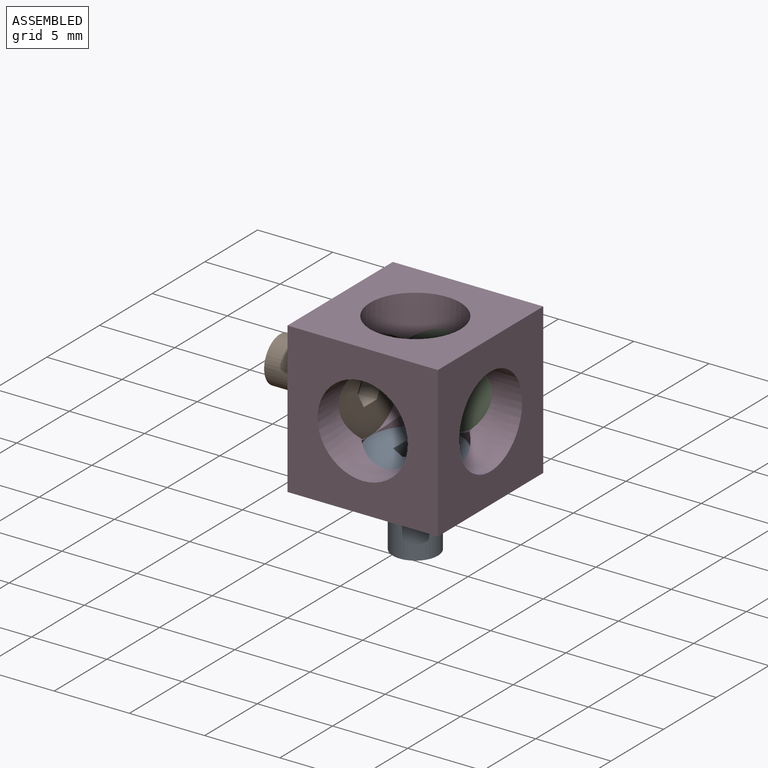
[diagram: assembled view]
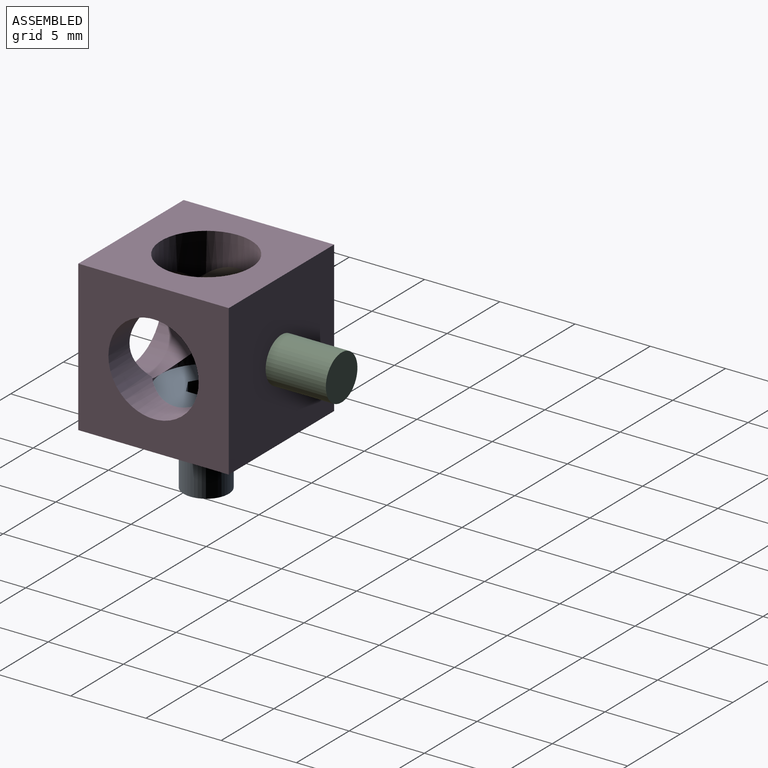
[diagram: assembled view, second angle]
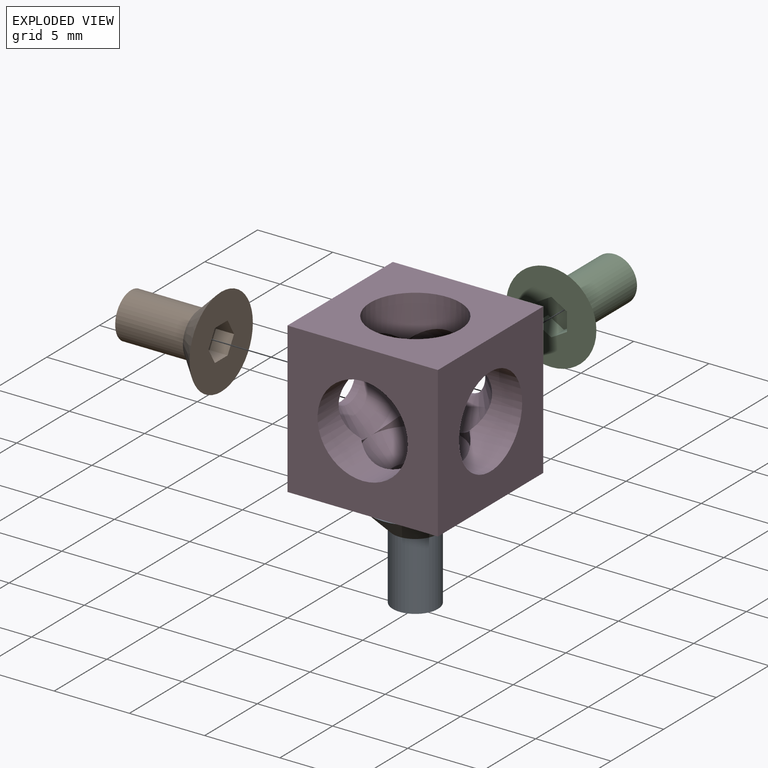
[diagram: exploded view]
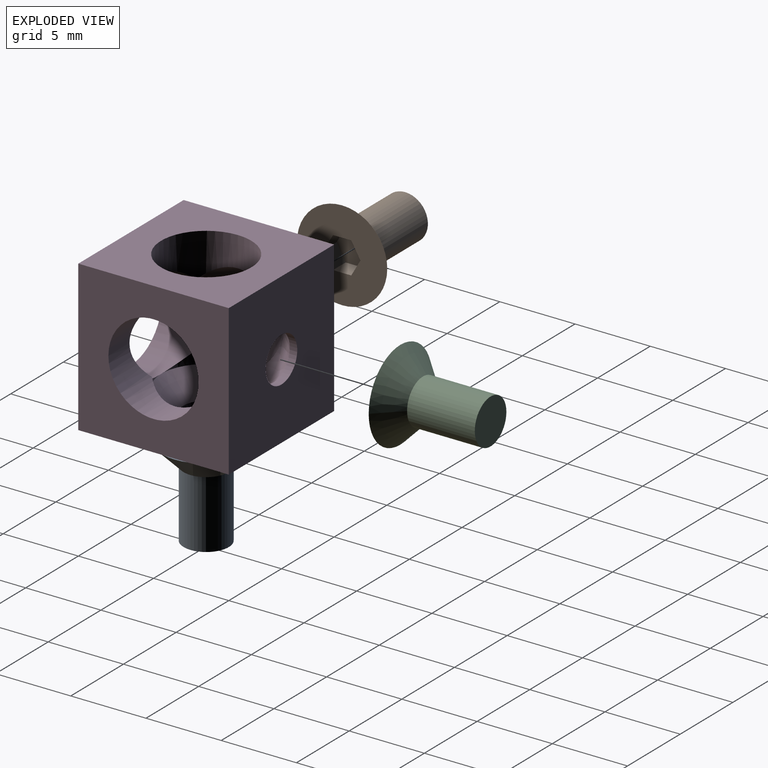
[diagram: exploded view, second angle]
ASSEMBLY  parts=4 mates=3
PART A: 11 faces, bbox 6x6x6 mm
  f0: plane 6x6mm, normal (0,0,1), area 24.5mm2, adj f3,f4,f5,f6,f7,f8,f9
  f1: cylinder r=1.5mm len=4.5mm, axis (0,0,1), area 42.4mm2, adj f2,f3
  f2: plane 3x3mm, normal (0,0,-1), area 7.1mm2, adj f1
  f3: cone r=3mm half-angle=45deg, axis (0,0,1), area 30mm2, adj f0,f1
  f4: plane 1.2x1.05mm, normal (-0.5,-0.87,0), area 1.5mm2, adj f0,f5,f9,f10
  f5: plane 1.2x1.05mm, normal (0.5,-0.87,0), area 1.5mm2, adj f0,f4,f6,f10
  f6: plane 1.21x1.2mm, normal (1,0,0), area 1.5mm2, adj f0,f5,f7,f10
  f7: plane 1.2x1.05mm, normal (0.5,0.87,0), area 1.5mm2, adj f0,f6,f8,f10
  f8: plane 1.2x1.05mm, normal (-0.5,0.87,0), area 1.5mm2, adj f0,f7,f9,f10
  f9: plane 1.21x1.2mm, normal (-1,0,0), area 1.5mm2, adj f0,f4,f8,f10
  f10: plane 2.43x2.1mm, normal (0,0,1), area 3.8mm2, adj f4,f5,f6,f7,f8,f9
PART B: same geometry as A
PART C: same geometry as A
PART D: 27 faces, bbox 10x10x10 mm
  f0: cylinder r=3mm len=3mm, axis (0,-1,0), area 1.4mm2, adj f11,f19,f25
  f1: cylinder r=3mm len=3mm, axis (0,-1,0), area 1.4mm2, adj f11,f20,f25
  f2: cylinder r=3mm len=3mm, axis (1,0,0), area 1.4mm2, adj f13,f20,f26
  f3: cylinder r=3mm len=3mm, axis (1,0,0), area 1.4mm2, adj f12,f16,f26
  f4: cylinder r=3mm len=6mm, axis (0,-1,0), area 43.3mm2, adj f7,f11,f14,f15,f17,f18,f20
  f5: plane 10x10mm, normal (0,1,0), area 92.9mm2, adj f6,f8,f9,f10,f21
  f6: plane 10x10mm, normal (-1,0,0), area 92.9mm2, adj f5,f7,f9,f10,f22
  f7: plane 10x10mm, normal (0,-1,0), area 71.7mm2, adj f4,f6,f8,f9,f10
  f8: plane 10x10mm, normal (1,0,0), area 71.7mm2, adj f5,f7,f9,f10,f11
  f9: plane 10x10mm, normal (0,0,1), area 71.7mm2, adj f5,f6,f7,f8,f20
  f10: plane 10x10mm, normal (0,0,-1), area 92.9mm2, adj f5,f6,f7,f8,f23
  f11: cylinder r=3mm len=6mm, axis (1,0,0), area 43.3mm2, adj f0,f1,f4,f8,f18,f19,f20
  f12: cylinder r=3mm len=3mm, axis (0,-1,0), area 1.4mm2, adj f3,f16,f25
  f13: cylinder r=3mm len=3mm, axis (0,-1,0), area 1.4mm2, adj f2,f20,f25
  f14: cylinder r=3mm len=3mm, axis (1,0,0), area 1.4mm2, adj f4,f20,f26
  f15: cylinder r=3mm len=3mm, axis (1,0,0), area 1.4mm2, adj f4,f17,f26
  f16: cylinder r=3mm len=3mm, axis (0,0,1), area 1.4mm2, adj f3,f12,f24
  f17: cylinder r=3mm len=3mm, axis (0,0,1), area 1.4mm2, adj f4,f15,f24
  f18: cylinder r=3mm len=3mm, axis (0,0,1), area 1.4mm2, adj f4,f11,f24
  f19: cylinder r=3mm len=3mm, axis (0,0,1), area 1.4mm2, adj f0,f11,f24
  f20: cylinder r=3mm len=6mm, axis (0,0,1), area 43.3mm2, adj f1,f2,f4,f9,f11,f13,f14
  f21: cylinder r=1.5mm len=3mm, axis (0,-1,0), area 4.7mm2, adj f5,f25
  f22: cylinder r=1.5mm len=3mm, axis (1,0,0), area 4.7mm2, adj f6,f26
  f23: cylinder r=1.5mm len=3mm, axis (0,0,1), area 4.7mm2, adj f10,f24
  f24: cone r=1.5mm half-angle=45deg, axis (0,0,1), area 30mm2, adj f16,f17,f18,f19,f23
  f25: cone r=1.5mm half-angle=45deg, axis (0,-1,0), area 30mm2, adj f0,f1,f12,f13,f21
  f26: cone r=1.5mm half-angle=45deg, axis (1,0,0), area 30mm2, adj f2,f3,f14,f15,f22
PLACE A t=(0,0,-3)mm
PLACE B rot(axis=(0,1,0),90deg) t=(-3,0,0)mm
PLACE C rot(axis=(1,0,0),90deg) t=(0,3,0)mm
PLACE D at identity fixed
MATE fastened A.f1 <-> D.f16  axis (0,0,1) through (0,0,-4.5)mm
MATE fastened C.f1 <-> D.f0  axis (0,-1,0) through (0,4.5,0)mm
MATE fastened B.f1 <-> D.f2  axis (1,0,0) through (-4.5,0,0)mm
